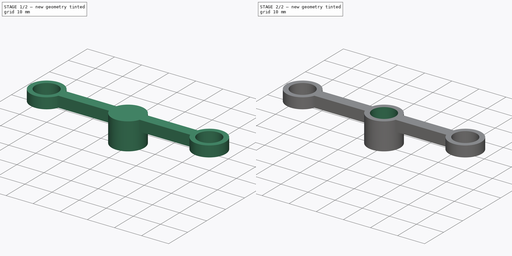
[diagram: build sequence overview — one tinted view per stage of 2, left to right]
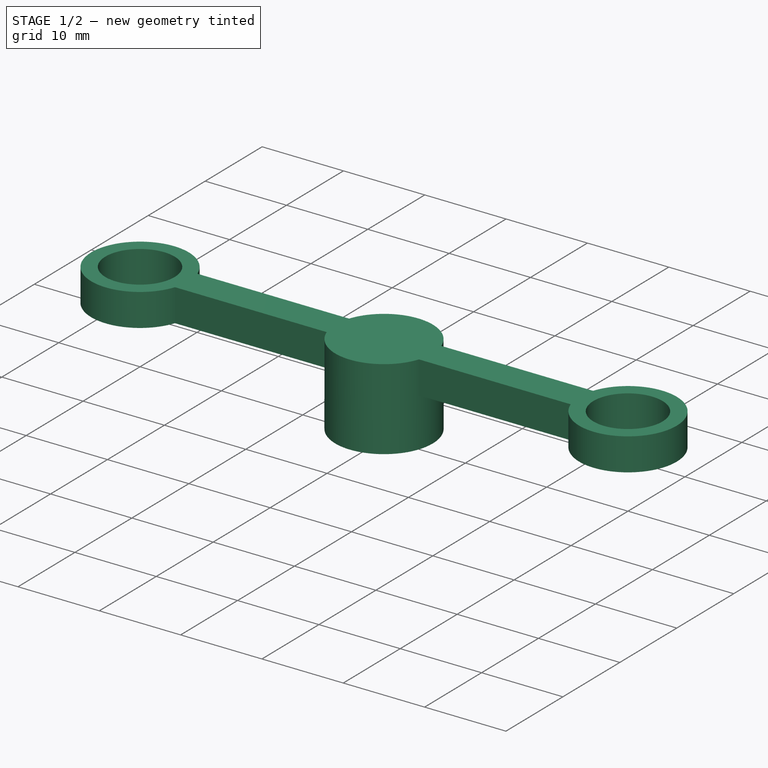
[diagram: stage 1 of 2 — iso view after this stage's code; geometry added in this stage tinted green]
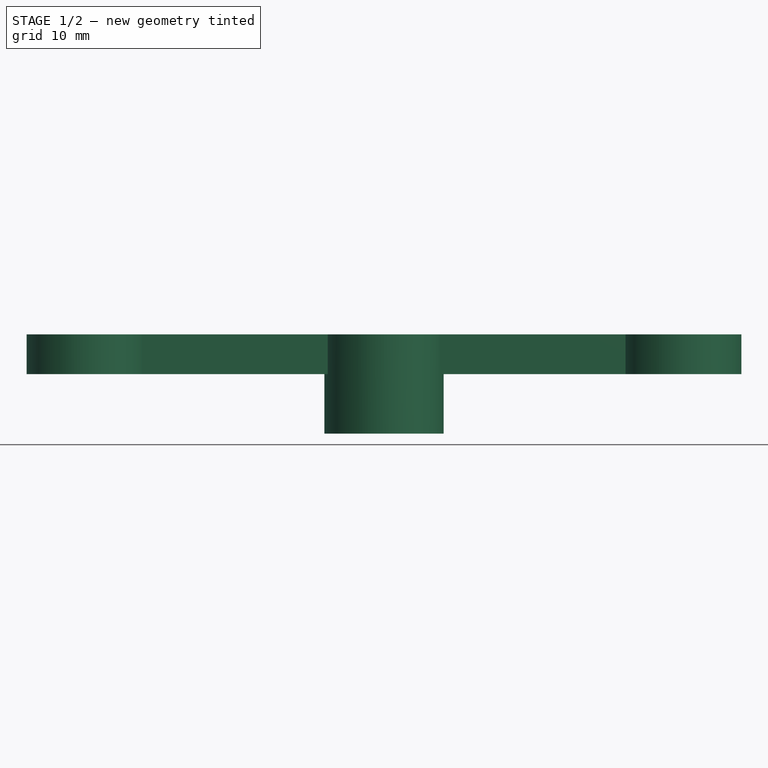
[diagram: stage 1 of 2 — front view after this stage's code; geometry added in this stage tinted green]
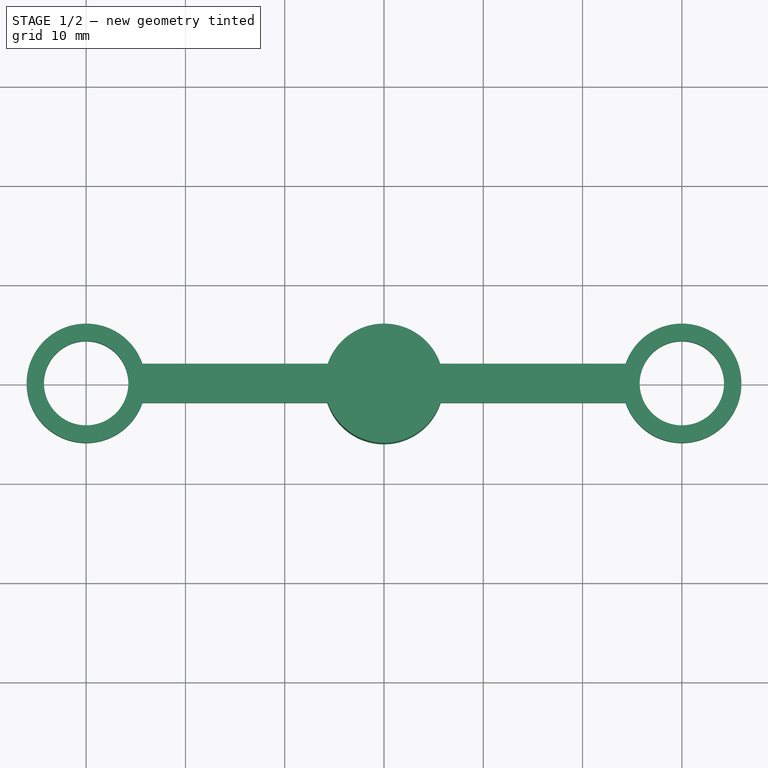
[diagram: stage 1 of 2 — top view after this stage's code; geometry added in this stage tinted green]
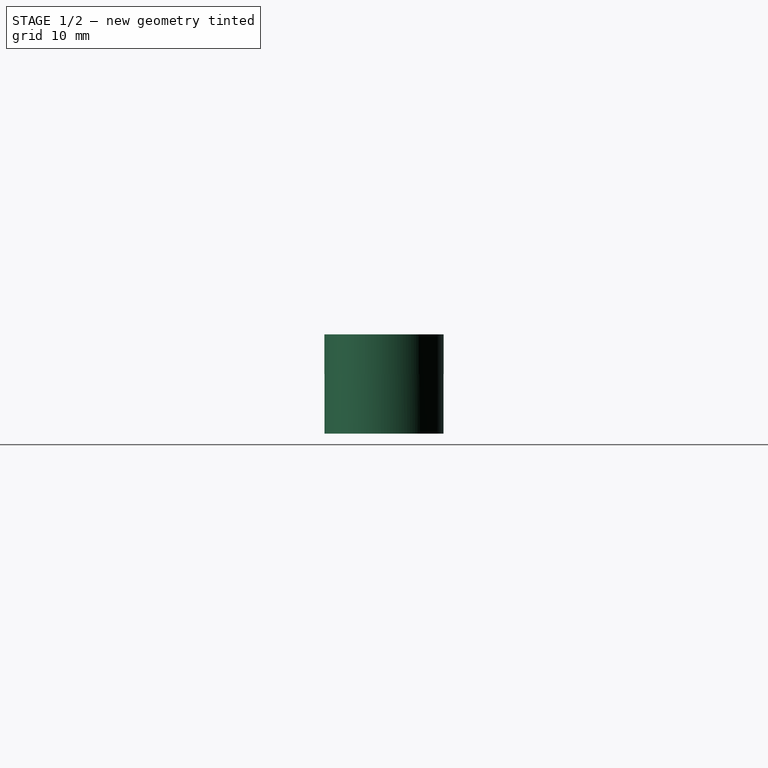
[diagram: stage 1 of 2 — right view after this stage's code; geometry added in this stage tinted green]
FCSTD DOCUMENT  (FreeCAD 1.0R38641 +678 (Git))
Label: central-connection-rod
License: All rights reserved
LicenseURL: https://en.wikipedia.org/wiki/All_rights_reserved
objects: Sketcher::SketchObject×3, PartDesign::Pad×2, PartDesign::Pocket×1, PartDesign::Body×1
note: 16 computed .brp shape members not serialized (recipe doc carries the construction recipe); baked Part::Feature solids carry a one-line shape summary decoded from their .brp

FEATURE [Sketcher::SketchObject] Sketch036
  ArcFitTolerance = 0
  AttachmentSupport = -> [XY_Plane005]
  FullyConstrained = true
  MakeInternals = false
  MapMode = 5
  sketch-geometry (6):
    g0: Circle CenterX=0 CenterY=0 CenterZ=0 NormalX=0 NormalY=0 NormalZ=1 AngleXU=0 Radius=4.25
    g1: ArcOfCircle CenterX=0 CenterY=0 CenterZ=0 NormalX=0 NormalY=0 NormalZ=1 AngleXU=0 Radius=6 StartAngle=0.333202 EndAngle=5.94998
    g2: Circle CenterX=60 CenterY=0 CenterZ=0 NormalX=0 NormalY=0 NormalZ=1 AngleXU=0 Radius=4.25
    g3: ArcOfCircle CenterX=60 CenterY=0 CenterZ=0 NormalX=0 NormalY=0 NormalZ=1 AngleXU=0 Radius=6 StartAngle=3.47479 EndAngle=9.09158
    g4: LineSegment StartX=5.67 StartY=1.96242 StartZ=0 EndX=54.33 EndY=1.96242 EndZ=0
    g5: LineSegment StartX=54.33 StartY=-1.96242 StartZ=0 EndX=5.67 EndY=-1.96242 EndZ=0
  constraints (17):
    c: Coincident(g0,g-1)
    c: Coincident(g1,g0)
    c: Diameter(g0) = 8.5
    c: Diameter(g1) = 12
    c: PointOnObject(g2,g-1)
    c: Coincident(g3,g2)
    c: Equal(g2,g0)
    c: Equal(g3,g1)
    c: Horizontal(g4)
    c: Horizontal(g5)
    c: Coincident(g4,g1)
    c: Coincident(g5,g1)
    c: Coincident(g3,g4)
    c: Coincident(g5,g3)
    c: Distance(g0,g2) = 60
    c: DistanceX(g5,g5) = 48.66
    c: DistanceX(g4,g4) = 48.66
FEATURE [PartDesign::Pad] Pad014
  Direction = (0,0,1)
  Length = 4
  Length2 = 10
  Profile = -> Sketch036
  ReferenceAxis = -> Sketch036 [N_Axis]
  Suppressed = false
  Type = 0
FEATURE [Sketcher::SketchObject] Sketch087
  ArcFitTolerance = 0
  AttachmentSupport = -> [Pad014]
  FullyConstrained = true
  MakeInternals = false
  MapMode = 5
  Placement = pos=(0,0,4) rot=(0,0,1;0rad)
  sketch-geometry (1):
    g0: Circle CenterX=30 CenterY=0 CenterZ=0 NormalX=0 NormalY=0 NormalZ=1 AngleXU=0 Radius=6
  constraints (3):
    c: PointOnObject(g0,g-1)
    c: Diameter(g0) = 12
    c: DistanceX(g-2,g0) = 30
FEATURE [PartDesign::Pad] Pad030
  BaseFeature = -> Pad014
  Direction = (0,0,1)
  Length = 10
  Length2 = 10
  Profile = -> Sketch087
  ReferenceAxis = -> Sketch087 [N_Axis]
  Reversed = true
  Suppressed = false
  Type = 0
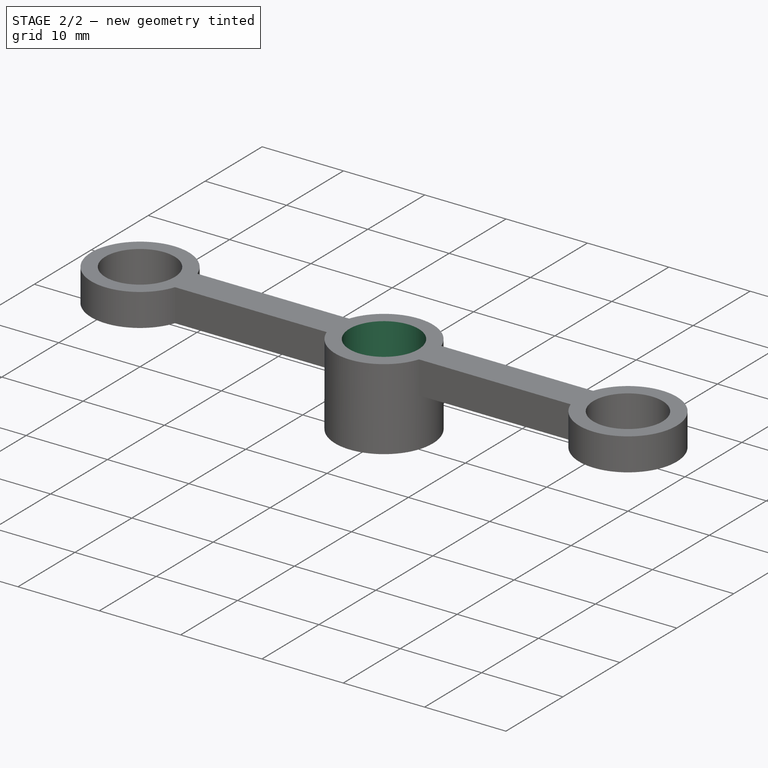
[diagram: stage 2 of 2 — iso view after this stage's code; geometry added in this stage tinted green]
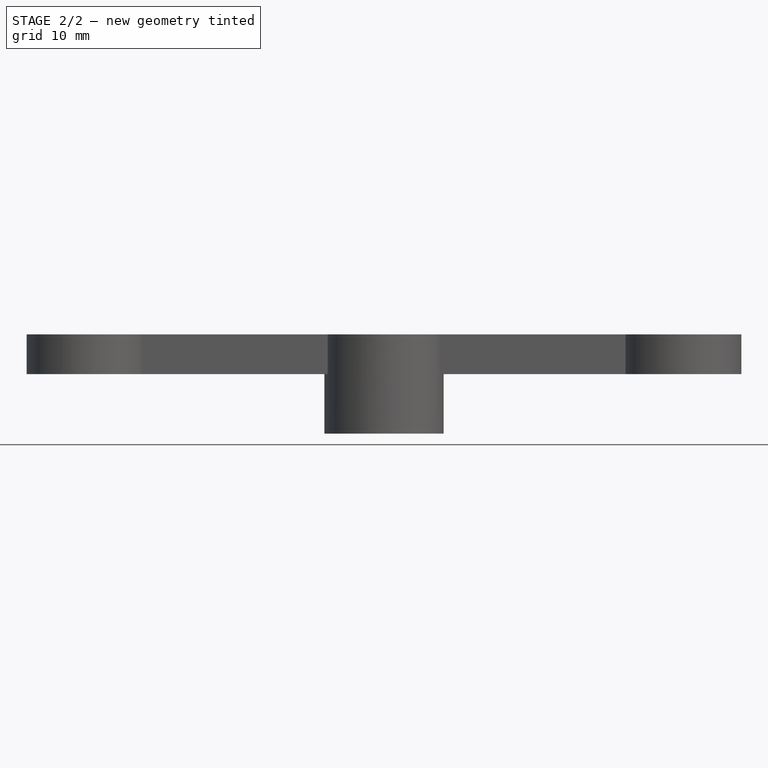
[diagram: stage 2 of 2 — front view after this stage's code; geometry added in this stage tinted green]
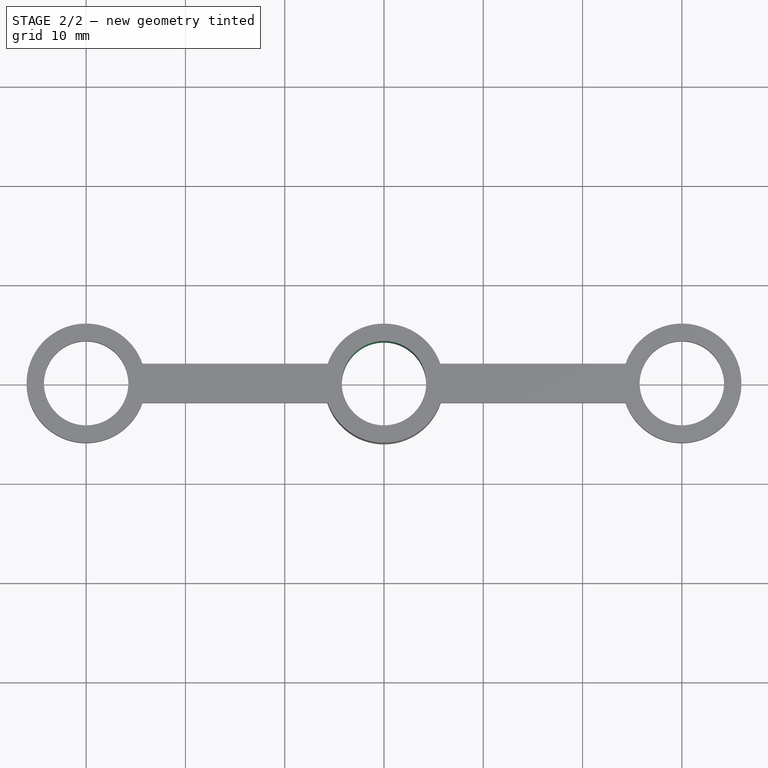
[diagram: stage 2 of 2 — top view after this stage's code; geometry added in this stage tinted green]
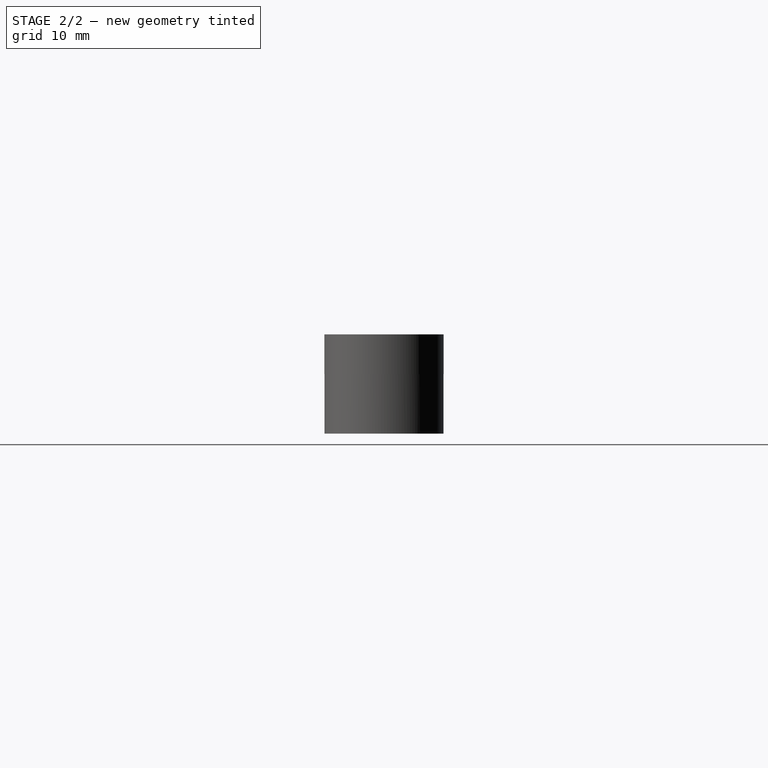
[diagram: stage 2 of 2 — right view after this stage's code; geometry added in this stage tinted green]
FEATURE [Sketcher::SketchObject] Sketch088
  ArcFitTolerance = 0
  AttachmentSupport = -> [Pad030]
  FullyConstrained = true
  MakeInternals = false
  MapMode = 5
  Placement = pos=(0,0,-6) rot=(1,0,0;3.14159rad)
  sketch-geometry (1):
    g0: Circle CenterX=30 CenterY=0 CenterZ=0 NormalX=0 NormalY=0 NormalZ=1 AngleXU=0 Radius=4.25
  constraints (3):
    c: PointOnObject(g0,g-1)
    c: Diameter(g0) = 8.5
    c: DistanceX(g-2,g0) = 30
FEATURE [PartDesign::Pocket] Pocket039
  BaseFeature = -> Pad030
  Direction = (0,0,1)
  Length = 10
  Length2 = 5
  Profile = -> Sketch088
  ReferenceAxis = -> Sketch088 [N_Axis]
  Suppressed = false
  Type = 0
FEATURE [PartDesign::Body] Body005  label="central-connection-rod"
  AllowCompound = false
  Group = -> [Sketch036,Pad014,Sketch087,Pad030,Sketch088,Pocket039]
  Origin = -> Origin005
  Placement = pos=(62,59,22) rot=(0,0,1;1.5708rad)
  Tip = -> Pocket039
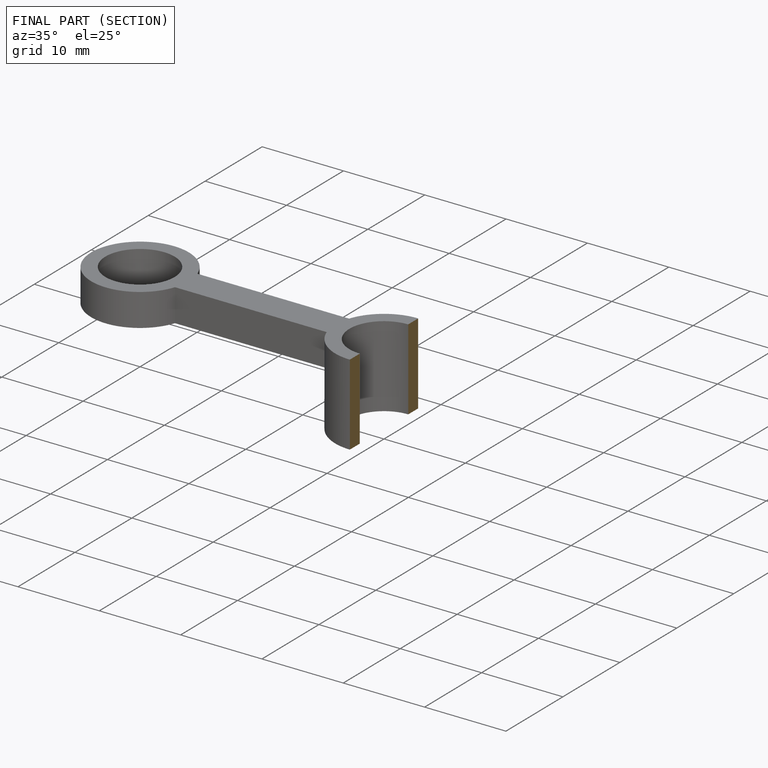
[diagram: finished part — half-section view (interior)]
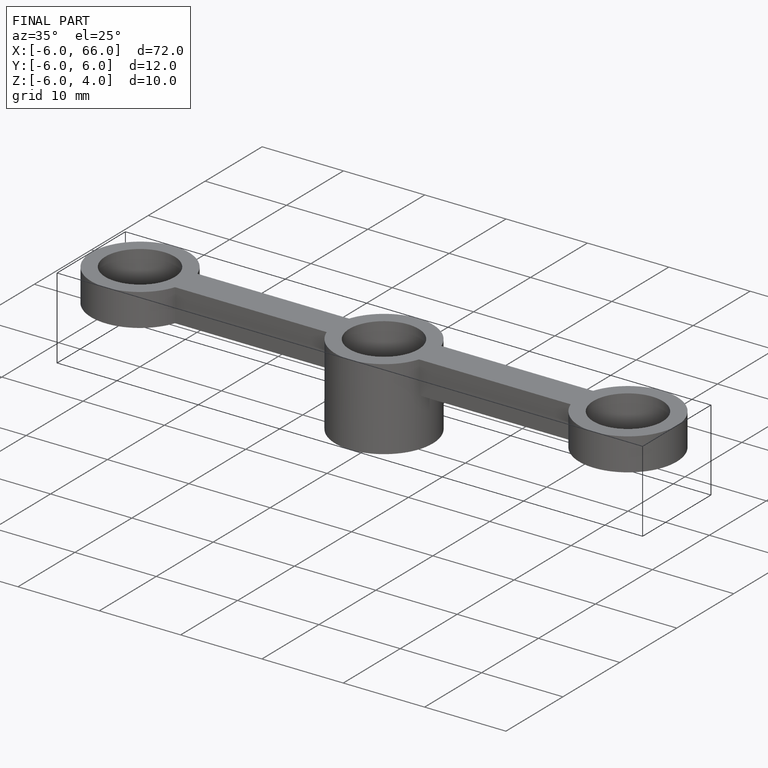
[diagram: finished part — iso view with bounding-box wireframe]
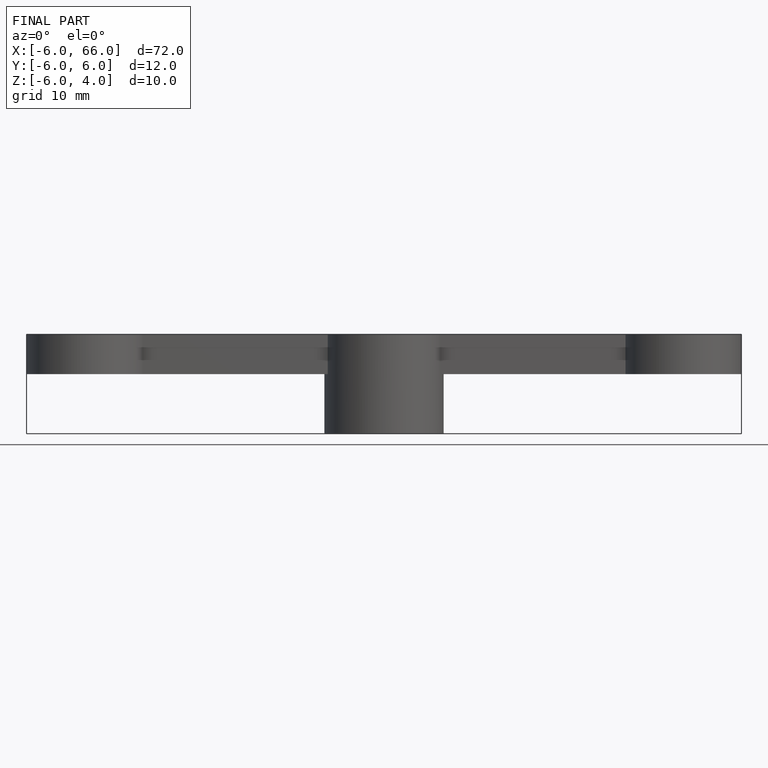
[diagram: finished part — front view with bounding-box wireframe]
